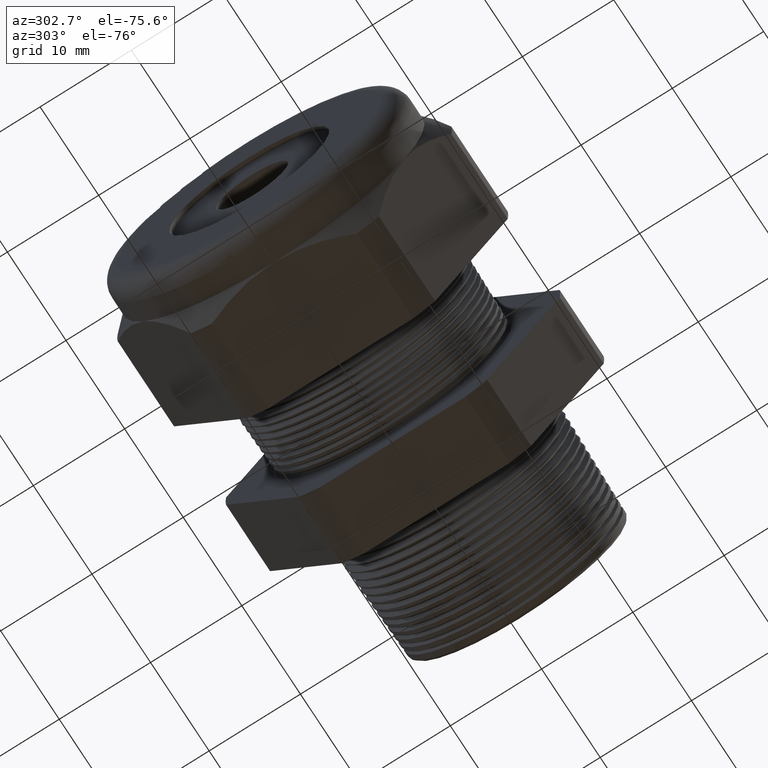
[diagram: clean part render]
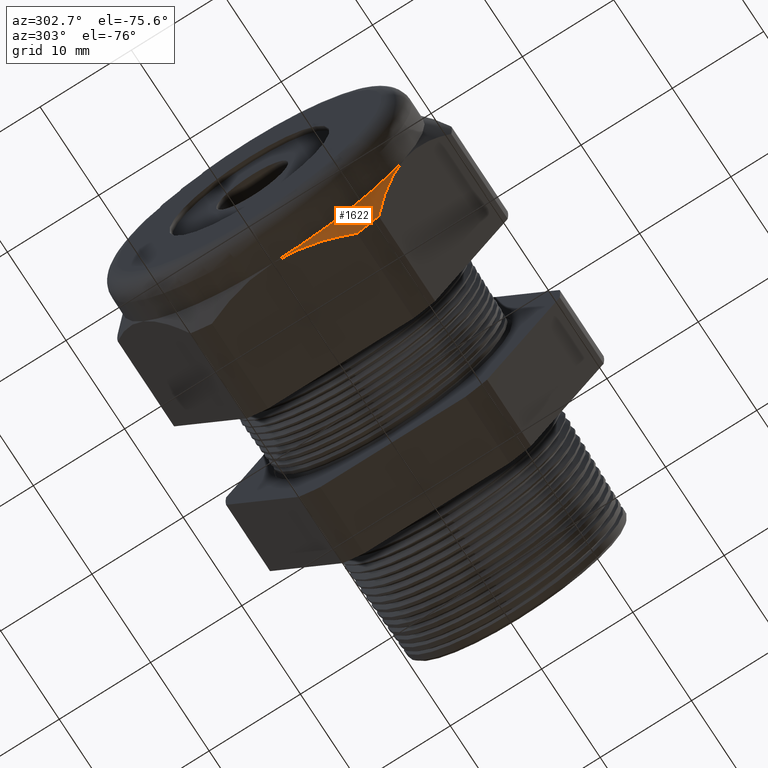
[diagram: same view with one face highlighted and labeled with its STEP entity id]
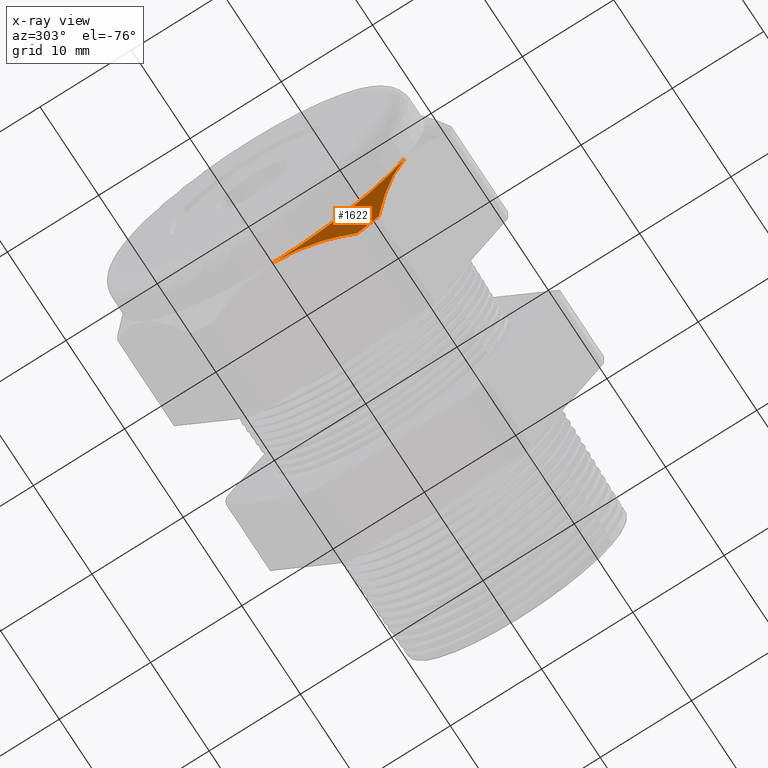
[diagram: x-ray of the same camera — body ghosted, the highlighted face saturated]
A machine part, auxiliary view. The second image highlights one B-rep face of the part: STEP entity #1622.
The next image is the same camera in x-ray: the body ghosted, the highlighted face saturated — about 0% of this face is hidden behind the body in this view.
In plain terms, the highlighted conical surface has half-angle 45 deg.
Its self-contained STEP definition (entity closure, byte-faithful):
#302 = VERTEX_POINT ( 'NONE', #2687 ) ;
#837 = VERTEX_POINT ( 'NONE', #3729 ) ;
#1262 = VERTEX_POINT ( 'NONE', #4541 ) ;
#1264 = EDGE_CURVE ( 'NONE', #1262, #837, #4601, .T. ) ;
#1318 = EDGE_CURVE ( 'NONE', #302, #1331, #4716, .T. ) ;
#1331 = VERTEX_POINT ( 'NONE', #4751 ) ;
#1333 = EDGE_CURVE ( 'NONE', #1331, #1262, #4750, .T. ) ;
#1435 = EDGE_CURVE ( 'NONE', #302, #837, #4968, .T. ) ;
#1622 = ADVANCED_FACE ( 'NONE', ( #5251 ), #5250, .T. ) ;
#1623 = EDGE_LOOP ( 'NONE', ( #1624, #1625, #1679, #1680 ) ) ;
#1624 = ORIENTED_EDGE ( 'NONE', *, *, #1435, .T. ) ;
#1625 = ORIENTED_EDGE ( 'NONE', *, *, #1264, .F. ) ;
#1679 = ORIENTED_EDGE ( 'NONE', *, *, #1333, .F. ) ;
#1680 = ORIENTED_EDGE ( 'NONE', *, *, #1318, .F. ) ;
#2687 = CARTESIAN_POINT ( 'NONE',  ( -1.404645669291338700, -0.5629165124598851700, -0.3250000000000002300 ) ) ;
#3729 = CARTESIAN_POINT ( 'NONE',  ( -1.404645669291338700, 0.0000000000000000000, -0.6500000000000001300 ) ) ;
#4541 = CARTESIAN_POINT ( 'NONE',  ( -1.333145669291338800, -0.3131489262315934600, -0.6500000000000001300 ) ) ;
#4593 = CARTESIAN_POINT ( 'NONE',  ( -1.404645669291338700, 0.0000000000000000000, -0.6500000000000001300 ) ) ;
#4594 = CARTESIAN_POINT ( 'NONE',  ( -1.404645669291338900, -0.05447567936366845600, -0.6500000000000003600 ) ) ;
#4595 = CARTESIAN_POINT ( 'NONE',  ( -1.397736925318555400, -0.1077136765109596000, -0.6500000000000003600 ) ) ;
#4596 = CARTESIAN_POINT ( 'NONE',  ( -1.379012774614852400, -0.1860728161737496300, -0.6500000000000001300 ) ) ;
#4597 = CARTESIAN_POINT ( 'NONE',  ( -1.371388897147413300, -0.2119448594679245500, -0.6500000000000003600 ) ) ;
#4598 = CARTESIAN_POINT ( 'NONE',  ( -1.353769659977806600, -0.2632641016272522800, -0.6500000000000001300 ) ) ;
#4599 = CARTESIAN_POINT ( 'NONE',  ( -1.343853258750207700, -0.2884784734615905600, -0.6500000000000001300 ) ) ;
#4600 = CARTESIAN_POINT ( 'NONE',  ( -1.333145669291338800, -0.3131489262315934600, -0.6500000000000001300 ) ) ;
#4601 = B_SPLINE_CURVE_WITH_KNOTS ( 'NONE', 3,
 ( #4600, #4599, #4598, #4597, #4596, #4595, #4594, #4593 ),
 .UNSPECIFIED., .F., .F.,
 ( 4, 2, 2, 4 ),
 ( 0.01177678614916234700, 0.01381288773391724400, 0.01584898931867214200, 0.01992119248818193300 ),
 .UNSPECIFIED. ) ;
#4708 = CARTESIAN_POINT ( 'NONE',  ( -1.333145669291338600, -0.4063420493440883500, -0.5961949252843792300 ) ) ;
#4709 = CARTESIAN_POINT ( 'NONE',  ( -1.354794001287756400, -0.4312810962751704200, -0.5529992289074006100 ) ) ;
#4710 = CARTESIAN_POINT ( 'NONE',  ( -1.372917759362547700, -0.4570573558384619100, -0.5083534377146962100 ) ) ;
#4711 = CARTESIAN_POINT ( 'NONE',  ( -1.397805912917037700, -0.5092737903524782200, -0.4179119201463270000 ) ) ;
#4712 = CARTESIAN_POINT ( 'NONE',  ( -1.404645669291337800, -0.5358248930679734300, -0.3719240612461093800 ) ) ;
#4713 = CARTESIAN_POINT ( 'NONE',  ( -1.404645669291338700, -0.5629165124598851700, -0.3250000000000002300 ) ) ;
#4716 = B_SPLINE_CURVE_WITH_KNOTS ( 'NONE', 3,
 ( #4713, #4712, #4711, #4710, #4709, #4708 ),
 .UNSPECIFIED., .F., .F.,
 ( 4, 2, 4 ),
 ( 0.008163776578903778400, 0.01224274182034619200, 0.01632170706178860300 ),
 .UNSPECIFIED. ) ;
#4746 = DIRECTION ( 'NONE',  ( 0.0000000000000000000, 0.0000000000000000000, -1.000000000000000000 ) ) ;
#4747 = DIRECTION ( 'NONE',  ( 1.000000000000000000, 0.0000000000000000000, 0.0000000000000000000 ) ) ;
#4748 = CARTESIAN_POINT ( 'NONE',  ( -1.333145669291338600, 0.0000000000000000000, 0.0000000000000000000 ) ) ;
#4749 = AXIS2_PLACEMENT_3D ( 'NONE', #4748, #4747, #4746 ) ;
#4750 = CIRCLE ( 'NONE', #4749, 0.7215000000000000300 ) ;
#4751 = CARTESIAN_POINT ( 'NONE',  ( -1.333145669291338600, -0.4063420493440883500, -0.5961949252843792300 ) ) ;
#4964 = DIRECTION ( 'NONE',  ( 0.0000000000000000000, 0.0000000000000000000, -1.000000000000000000 ) ) ;
#4965 = DIRECTION ( 'NONE',  ( 1.000000000000000000, 0.0000000000000000000, 0.0000000000000000000 ) ) ;
#4966 = CARTESIAN_POINT ( 'NONE',  ( -1.404645669291338500, 0.0000000000000000000, 0.0000000000000000000 ) ) ;
#4967 = AXIS2_PLACEMENT_3D ( 'NONE', #4966, #4965, #4964 ) ;
#4968 = CIRCLE ( 'NONE', #4967, 0.6500000000000000200 ) ;
#5246 = DIRECTION ( 'NONE',  ( 0.0000000000000000000, 0.0000000000000000000, 1.000000000000000000 ) ) ;
#5247 = DIRECTION ( 'NONE',  ( 1.000000000000000000, 0.0000000000000000000, 0.0000000000000000000 ) ) ;
#5248 = AXIS2_PLACEMENT_3D ( 'NONE', #5257, #5247, #5246 ) ;
#5250 = CONICAL_SURFACE ( 'NONE', #5248, 0.6499999999999999100, 0.7853981633974501700 ) ;
#5251 = FACE_OUTER_BOUND ( 'NONE', #1623, .T. ) ;
#5257 = CARTESIAN_POINT ( 'NONE',  ( -1.404645669291338700, 0.0000000000000000000, 0.0000000000000000000 ) ) ;